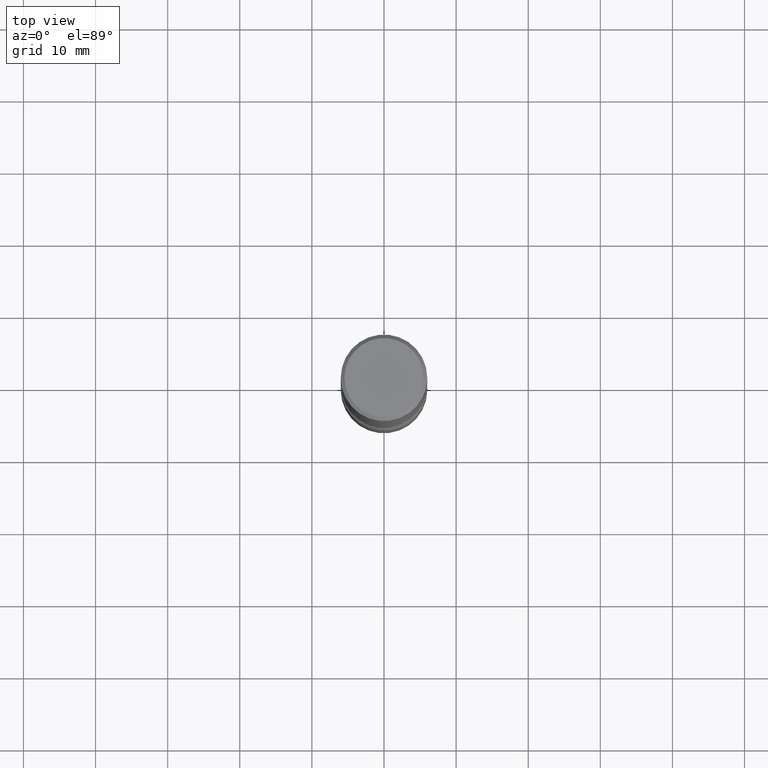
[diagram: clean part render]
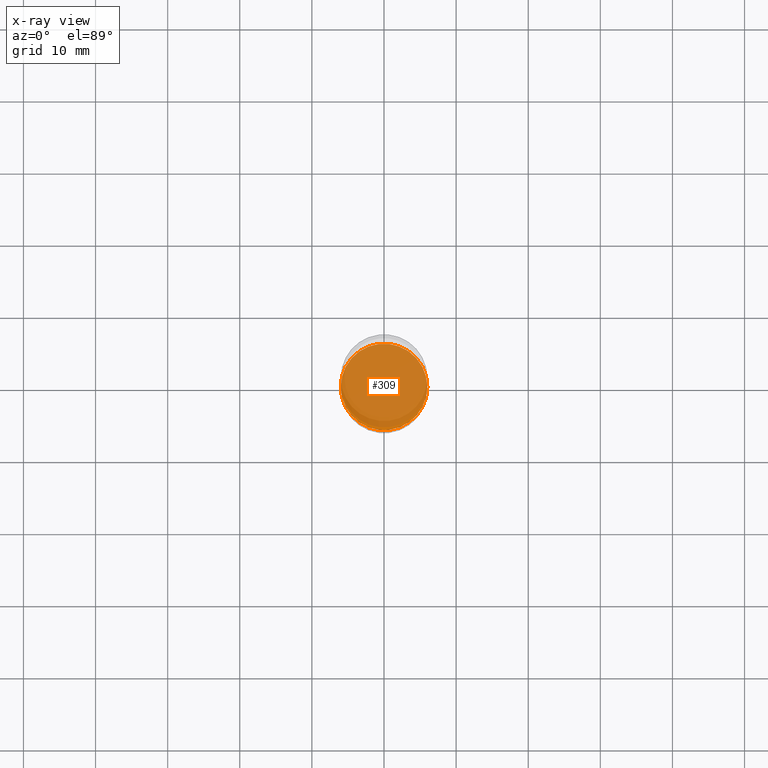
[diagram: x-ray — body ghosted, one internal face saturated and labeled with its STEP entity id]
A machine part, top view, then the same camera in x-ray: the body is ghosted and one INTERNAL B-rep face — a face not visible from any outside direction — is saturated and labeled: STEP entity #309.
In plain terms, the highlighted planar face has unit normal (0, -0, -1).
Its self-contained STEP definition (entity closure, byte-faithful):
#33 = CIRCLE ( 'NONE', #41, 0.2362000000000001321 ) ;
#38 = EDGE_CURVE ( 'NONE', #66, #224, #33, .T. ) ;
#41 = AXIS2_PLACEMENT_3D ( 'NONE', #124, #466, #382 ) ;
#66 = VERTEX_POINT ( 'NONE', #130 ) ;
#124 = CARTESIAN_POINT ( 'NONE',  ( 7.124628819939777829E-29, -1.017208173258562247E-14, -2.913400000000000212 ) ) ;
#128 = AXIS2_PLACEMENT_3D ( 'NONE', #361, #371, #234 ) ;
#130 = CARTESIAN_POINT ( 'NONE',  ( -0.2362000000000001321, -1.014333014925670672E-14, -2.913400000000000212 ) ) ;
#144 = ORIENTED_EDGE ( 'NONE', *, *, #38, .T. ) ;
#159 = ORIENTED_EDGE ( 'NONE', *, *, #380, .T. ) ;
#193 = DIRECTION ( 'NONE',  ( -2.445468806185136597E-29, 3.491481338843145583E-15, 1.000000000000000000 ) ) ;
#223 = CARTESIAN_POINT ( 'NONE',  ( 7.124628819939777829E-29, -1.017208173258562247E-14, -2.913400000000000212 ) ) ;
#224 = VERTEX_POINT ( 'NONE', #399 ) ;
#234 = DIRECTION ( 'NONE',  ( -1.000000000000000000, 6.982962677686265922E-15, -4.876176775795935793E-29 ) ) ;
#253 = EDGE_LOOP ( 'NONE', ( #159, #144 ) ) ;
#280 = AXIS2_PLACEMENT_3D ( 'NONE', #223, #193, #545 ) ;
#307 = CIRCLE ( 'NONE', #280, 0.2362000000000001321 ) ;
#309 = ADVANCED_FACE ( 'NONE', ( #440 ), #485, .F. ) ;
#361 = CARTESIAN_POINT ( 'NONE',  ( 7.124628819939777829E-29, -1.017208173258562247E-14, -2.913400000000000212 ) ) ;
#371 = DIRECTION ( 'NONE',  ( 2.438088387897960049E-29, -3.491481338843145188E-15, -1.000000000000000000 ) ) ;
#380 = EDGE_CURVE ( 'NONE', #224, #66, #307, .T. ) ;
#382 = DIRECTION ( 'NONE',  ( 1.000000000000000000, -6.982962677686269077E-15, 0.000000000000000000 ) ) ;
#399 = CARTESIAN_POINT ( 'NONE',  ( 0.2362000000000001321, -1.182145751705511899E-14, -2.913400000000000212 ) ) ;
#440 = FACE_OUTER_BOUND ( 'NONE', #253, .T. ) ;
#466 = DIRECTION ( 'NONE',  ( -2.445468806185136597E-29, 3.491481338843145583E-15, 1.000000000000000000 ) ) ;
#485 = PLANE ( 'NONE',  #128 ) ;
#545 = DIRECTION ( 'NONE',  ( 1.000000000000000000, -6.982962677686269077E-15, 0.000000000000000000 ) ) ;